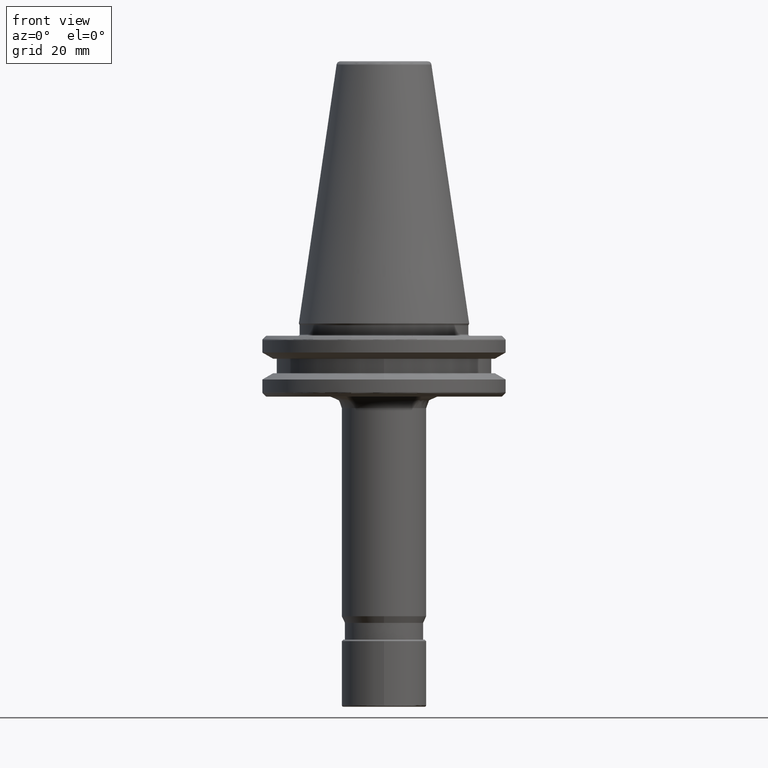
[diagram: clean part render]
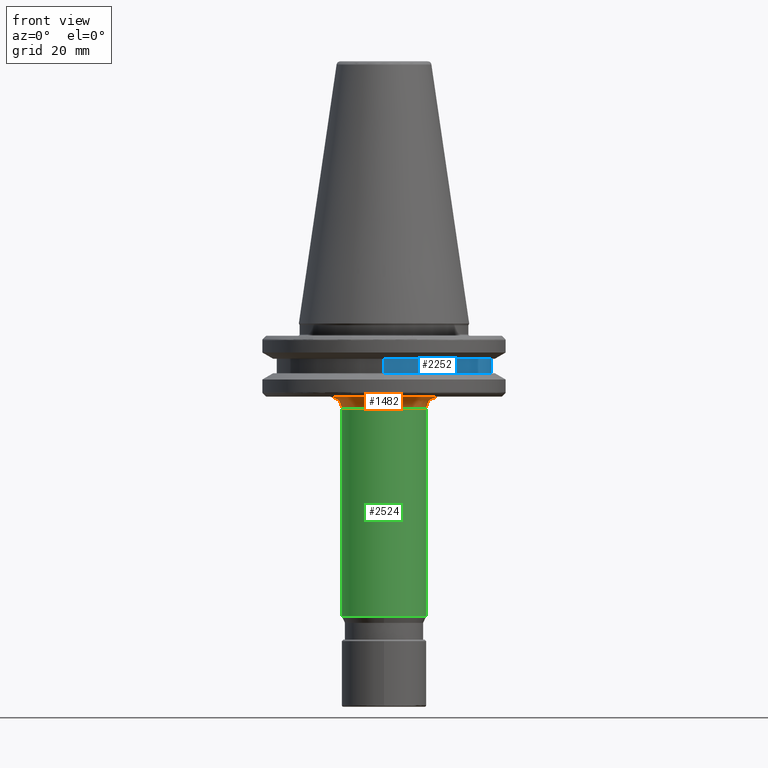
[diagram: same view with three faces highlighted in distinct colors, each labeled with its STEP entity id]
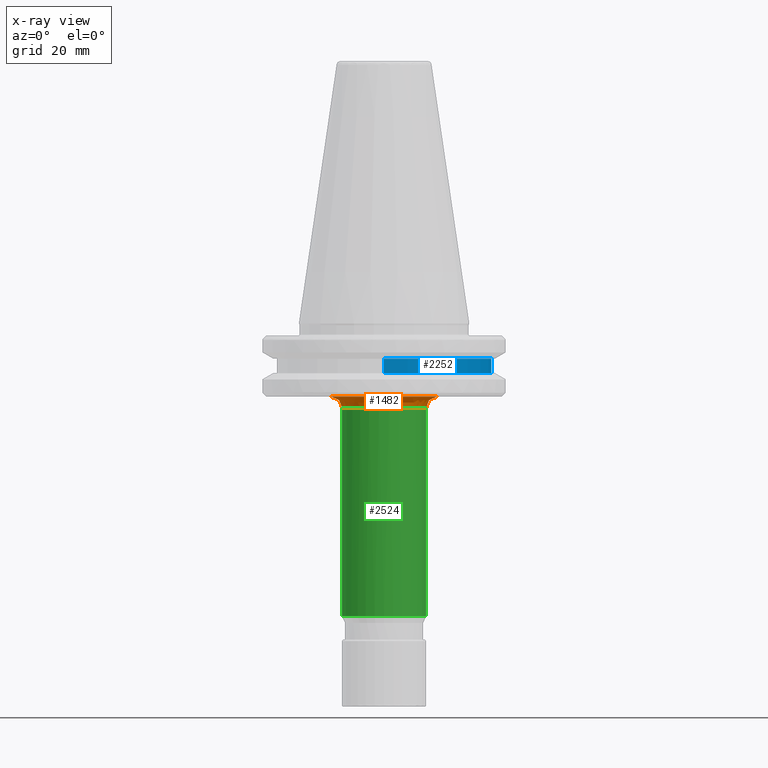
[diagram: x-ray of the same camera — body ghosted, the three highlighted faces saturated]
A machine part, front view with three faces highlighted in distinct colors.
The next image is the same camera in x-ray (body ghosted, the three faces saturated) — at least one of them is partly hidden behind the body in this view.
Their STEP definitions:

[orange] entity #1482 — the highlighted face is a freeform B-spline surface patch.
#13 = CARTESIAN_POINT ( 'NONE',  ( -10.36286045715019600, -9.413392332090424500, -19.10000000000000100 ) ) ;
#24 = CARTESIAN_POINT ( 'NONE',  ( -8.158444783580272000, -11.37748629482766700, -19.09999999999999800 ) ) ;
#35 = CARTESIAN_POINT ( 'NONE',  ( -6.707400549822712500, -12.28882747609662300, -19.10000000000000900 ) ) ;
#48 = CARTESIAN_POINT ( 'NONE',  ( -2.316102617542180800, -13.81012906421380900, -19.10000000000001600 ) ) ;
#55 = VERTEX_POINT ( 'NONE', #2914 ) ;
#63 = CARTESIAN_POINT ( 'NONE',  ( -11.00000000091064800, 0.0000000000000000000, -20.34264068676927900 ) ) ;
#66 = CARTESIAN_POINT ( 'NONE',  ( 9.156202084737252300, -10.59079677476361100, -19.09999999999999800 ) ) ;
#152 = CARTESIAN_POINT ( 'NONE',  ( -10.81033873200000200, -21.62067746400000700, -20.35983870400000500 ) ) ;
#217 = CARTESIAN_POINT ( 'NONE',  ( 7.775932328565342100, -11.64228723145097000, -19.09999999999999800 ) ) ;
#218 = DIRECTION ( 'NONE',  ( 0.0000000000000000000, 0.0000000000000000000, 1.000000000000000000 ) ) ;
#226 = CARTESIAN_POINT ( 'NONE',  ( 3.305715666981399200, -13.60431573757647800, -19.10000000000000100 ) ) ;
#233 = CARTESIAN_POINT ( 'NONE',  ( -14.29950025000000100, 0.0000000000000000000, -19.11498750400000500 ) ) ;
#238 = CARTESIAN_POINT ( 'NONE',  ( 13.86569435559510000, -1.934767207544784800, -19.10000000000000100 ) ) ;
#251 = CARTESIAN_POINT ( 'NONE',  ( 13.33921194611340500, -4.252410688305282300, -19.10000000000000100 ) ) ;
#260 = CARTESIAN_POINT ( 'NONE',  ( 11.83954440932815900, -7.494887792217078900, -19.10000000000000500 ) ) ;
#268 = CARTESIAN_POINT ( 'NONE',  ( -10.30320828978966200, -9.478652170441609600, -19.09999999999999800 ) ) ;
#282 = CARTESIAN_POINT ( 'NONE',  ( 10.68076680287143900, -9.056583707257118500, -19.09999999999999800 ) ) ;
#293 = CARTESIAN_POINT ( 'NONE',  ( -6.342564730461603500, -12.48397714306705300, -19.10000000000000500 ) ) ;
#301 = CARTESIAN_POINT ( 'NONE',  ( -1.164762836666204200, -13.96366059549640700, -19.10000000000000500 ) ) ;
#312 = CARTESIAN_POINT ( 'NONE',  ( 12.24264068605801500, 0.0000000000000000000, -19.10000000091065400 ) ) ;
#315 = CARTESIAN_POINT ( 'NONE',  ( -13.45226805944122400, -3.877701979167554700, -19.10000000000000500 ) ) ;
#320 = CARTESIAN_POINT ( 'NONE',  ( -12.73316352780018700, -5.821007116466709900, -19.09999999999999800 ) ) ;
#354 =( BOUNDED_CURVE ( )  B_SPLINE_CURVE ( 3, ( #2078, #828, #63, #2171 ),
 .UNSPECIFIED., .F., .F. ) 
 B_SPLINE_CURVE_WITH_KNOTS ( ( 4, 4 ),
 ( 0.06314145700000009500, 0.9368585429999997100 ),
 .UNSPECIFIED. ) 
 CURVE ( )  GEOMETRIC_REPRESENTATION_ITEM ( )  RATIONAL_B_SPLINE_CURVE ( ( 0.9565783021659930400, 0.7697947703959744400, 0.7697947703959744400, 0.9565783021659929300 ) ) 
 REPRESENTATION_ITEM ( '' )  );
#357 = CARTESIAN_POINT ( 'NONE',  ( -13.93934365640826900, -1.318066439066382500, -19.10000000000000500 ) ) ;
#457 = CARTESIAN_POINT ( 'NONE',  ( -11.01498750400000000, 0.0000000000000000000, -22.39950024999999900 ) ) ;
#481 = CARTESIAN_POINT ( 'NONE',  ( 6.528595523826218100, -12.38474622002781800, -19.10000000000000100 ) ) ;
#495 = CARTESIAN_POINT ( 'NONE',  ( 3.722201693382291700, -13.49913474462273500, -19.10000000000000500 ) ) ;
#510 = CARTESIAN_POINT ( 'NONE',  ( 13.87316931708519800, -1.880232539237060000, -19.10000000000000100 ) ) ;
#516 = CARTESIAN_POINT ( 'NONE',  ( 12.57883289791504900, -6.145982777992530000, -19.10000000000000500 ) ) ;
#524 = CARTESIAN_POINT ( 'NONE',  ( 10.81033873200000200, -21.62067746400000700, -20.35983870400000500 ) ) ;
#526 = CARTESIAN_POINT ( 'NONE',  ( 11.12778686417240900, -8.495480441625561600, -19.10000000000000500 ) ) ;
#530 = VERTEX_POINT ( 'NONE', #3109 ) ;
#542 = CARTESIAN_POINT ( 'NONE',  ( -9.850031153959207600, -9.954247996654597600, -19.09999999999999800 ) ) ;
#554 = CARTESIAN_POINT ( 'NONE',  ( 10.19651887728577200, -9.593326984117425100, -19.10000000000000100 ) ) ;
#561 = CARTESIAN_POINT ( 'NONE',  ( -7.002590216990145500, -12.12418689544444700, -19.09999999999999800 ) ) ;
#569 = CARTESIAN_POINT ( 'NONE',  ( 0.2914836909309104200, -14.00001144979583500, -19.10000000000000900 ) ) ;
#592 = CARTESIAN_POINT ( 'NONE',  ( 9.394133895978741900, -10.38331381235762600, -19.10000000000000500 ) ) ;
#622 = CARTESIAN_POINT ( 'NONE',  ( -13.52348002842328300, -3.623423034698007400, -19.09999999999999800 ) ) ;
#639 = CARTESIAN_POINT ( 'NONE',  ( 12.25983870399999800, -24.51967740900000300, -18.91033873200000300 ) ) ;
#687 = DIRECTION ( 'NONE',  ( 1.000000000000000000, 0.0000000000000000000, 0.0000000000000000000 ) ) ;
#722 = CARTESIAN_POINT ( 'NONE',  ( 11.01498750400000000, -22.02997500800000500, -22.39950024999999900 ) ) ;
#752 = CARTESIAN_POINT ( 'NONE',  ( 5.715431561765311300, -12.78554393726402700, -19.09999999999999800 ) ) ;
#758 = ORIENTED_EDGE ( 'NONE', *, *, #2404, .T. ) ;
#762 =( BOUNDED_CURVE ( )  B_SPLINE_CURVE ( 3, ( #869, #1059, #312, #2711 ),
 .UNSPECIFIED., .F., .F. ) 
 B_SPLINE_CURVE_WITH_KNOTS ( ( 4, 4 ),
 ( 0.06314145671542857600, 0.9368585429999990400 ),
 .UNSPECIFIED. ) 
 CURVE ( )  GEOMETRIC_REPRESENTATION_ITEM ( )  RATIONAL_B_SPLINE_CURVE ( ( 0.9565783023485002800, 0.7697947703959744400, 0.7697947703351385500, 0.9565783021659924900 ) ) 
 REPRESENTATION_ITEM ( '' )  );
#763 = CARTESIAN_POINT ( 'NONE',  ( -12.62213866011586200, -6.056621050367250600, -19.09999999999999400 ) ) ;
#773 = CARTESIAN_POINT ( 'NONE',  ( 13.83233450678003100, -2.163383893895633600, -19.09999999999999800 ) ) ;
#786 = CARTESIAN_POINT ( 'NONE',  ( 12.99569472290052000, -5.233503724584436700, -19.09999999999999800 ) ) ;
#804 = CARTESIAN_POINT ( 'NONE',  ( -11.26633694897633800, -8.310861380018137000, -19.10000000000000500 ) ) ;
#813 = CARTESIAN_POINT ( 'NONE',  ( -2.883757012376557700, -13.70285579274853500, -19.10000000000000900 ) ) ;
#819 = CARTESIAN_POINT ( 'NONE',  ( -9.369729972260589800, -10.40264237960631500, -19.10000000000000100 ) ) ;
#828 = CARTESIAN_POINT ( 'NONE',  ( -12.24264068676927600, 0.0000000000000000000, -19.10000000091065100 ) ) ;
#832 = CARTESIAN_POINT ( 'NONE',  ( 10.26167824832935300, -9.523592966065782800, -19.09999999999999800 ) ) ;
#846 = CARTESIAN_POINT ( 'NONE',  ( 2.458266889080651400, -13.78782115965945800, -19.09999999999999800 ) ) ;
#849 = ORIENTED_EDGE ( 'NONE', *, *, #1081, .F. ) ;
#860 = CARTESIAN_POINT ( 'NONE',  ( -5.138062878864950300, -13.02326011005788300, -19.10000000000000500 ) ) ;
#869 = CARTESIAN_POINT ( 'NONE',  ( 10.99999999996942700, -4.938649563580315600E-010, -22.10000000000000100 ) ) ;
#909 = CARTESIAN_POINT ( 'NONE',  ( 12.25983870400000000, 0.0000000000000000000, -18.91033873200000300 ) ) ;
#912 = CARTESIAN_POINT ( 'NONE',  ( -13.46140253849050500, -3.845964829889311000, -19.10000000000000100 ) ) ;
#1012 = CARTESIAN_POINT ( 'NONE',  ( 8.501118625466514100, -11.12881869393736700, -19.10000000000000100 ) ) ;
#1017 = CARTESIAN_POINT ( 'NONE',  ( 6.341189093826571400, -12.48175428091341600, -19.10000000000000100 ) ) ;
#1026 = CARTESIAN_POINT ( 'NONE',  ( -12.59513548492049000, -6.112503177034723100, -19.10000000000000100 ) ) ;
#1042 = CARTESIAN_POINT ( 'NONE',  ( 13.43691934145425100, -3.930560815935495900, -19.10000000000001200 ) ) ;
#1053 = CARTESIAN_POINT ( 'NONE',  ( 12.55982638876216500, -6.184733328577493700, -19.10000000000000500 ) ) ;
#1059 = CARTESIAN_POINT ( 'NONE',  ( 11.00000000010118800, 0.0000000000000000000, -20.34264068757875100 ) ) ;
#1060 = CARTESIAN_POINT ( 'NONE',  ( -11.21793503437584300, -8.376084768015770600, -19.10000000000000100 ) ) ;
#1073 = CARTESIAN_POINT ( 'NONE',  ( -9.252630499693856000, -10.50665307429635900, -19.10000000000001200 ) ) ;
#1081 = EDGE_CURVE ( 'NONE', #1704, #2111, #3181, .T. ) ;
#1090 = CARTESIAN_POINT ( 'NONE',  ( 9.980118876294730200, -9.819612591153219900, -19.10000000000000900 ) ) ;
#1094 = CARTESIAN_POINT ( 'NONE',  ( 14.00000000217723800, 0.0000000000000000000, -19.09999999992663100 ) ) ;
#1100 = CARTESIAN_POINT ( 'NONE',  ( 1.163435989349808100, -13.95235037433007000, -19.10000000000000500 ) ) ;
#1109 = CARTESIAN_POINT ( 'NONE',  ( -8.078551725906972800, -11.43407227308017200, -19.09999999999999800 ) ) ;
#1114 = CARTESIAN_POINT ( 'NONE',  ( -13.32885564223925300, -4.301118215267646100, -19.10000000000000100 ) ) ;
#1146 = CARTESIAN_POINT ( 'NONE',  ( 14.29950025000000100, -28.59900049999999500, -19.11498750400000500 ) ) ;
#1165 = CARTESIAN_POINT ( 'NONE',  ( -13.87756610177013700, -1.847503412153400200, -19.10000000000000500 ) ) ;
#1194 = CARTESIAN_POINT ( 'NONE',  ( 13.99999999858502500, -0.6223928478897156100, -19.10000000000000100 ) ) ;
#1210 = CARTESIAN_POINT ( 'NONE',  ( -11.01498750400000000, -22.02997500800000500, -22.39950024999999900 ) ) ;
#1255 = CARTESIAN_POINT ( 'NONE',  ( -4.403951716143797800, -13.29465382039787100, -19.09999999999999400 ) ) ;
#1278 = CARTESIAN_POINT ( 'NONE',  ( 7.859947740938611800, -11.58543522740202300, -19.10000000000000500 ) ) ;
#1292 = CARTESIAN_POINT ( 'NONE',  ( 5.006817212484128800, -13.07427063635123700, -19.10000000000000500 ) ) ;
#1307 = CARTESIAN_POINT ( 'NONE',  ( -12.38960221635758600, -6.534185748997289900, -19.09999999999999800 ) ) ;
#1314 = CARTESIAN_POINT ( 'NONE',  ( 13.66703007546562500, -3.070895171057114800, -19.09999999999999400 ) ) ;
#1324 = CARTESIAN_POINT ( 'NONE',  ( 12.22759838156411000, -6.824536630563670800, -19.09999999999999800 ) ) ;
#1340 = CARTESIAN_POINT ( 'NONE',  ( -10.83415540340948300, -8.872518153654610300, -19.10000000000000100 ) ) ;
#1348 = CARTESIAN_POINT ( 'NONE',  ( -9.008916577824292600, -10.71950399578601100, -19.10000000000000500 ) ) ;
#1357 = CARTESIAN_POINT ( 'NONE',  ( -5.968744660624365000, -12.66926854731183900, -19.10000000000000100 ) ) ;
#1371 = CARTESIAN_POINT ( 'NONE',  ( -0.5829673818618201800, -13.99997709636030100, -19.10000000000000100 ) ) ;
#1384 = CARTESIAN_POINT ( 'NONE',  ( -7.999311379384114900, -11.48965298283111900, -19.10000000000000100 ) ) ;
#1390 = CARTESIAN_POINT ( 'NONE',  ( -12.87517172004442800, -5.504562226840735500, -19.10000000000000900 ) ) ;
#1418 = CARTESIAN_POINT ( 'NONE',  ( -13.99999999858502300, -0.3110257572653066200, -19.10000000000000500 ) ) ;
#1430 = CARTESIAN_POINT ( 'NONE',  ( -13.90998340567376300, -1.588377989081420000, -19.10000000000000100 ) ) ;
#1440 = CARTESIAN_POINT ( 'NONE',  ( -13.73983804394698500, -2.726711564042388700, -19.10000000000000500 ) ) ;
#1482 = ADVANCED_FACE ( 'NONE', ( #1891 ), #1580, .F. ) ;
#1485 = CARTESIAN_POINT ( 'NONE',  ( -12.25983870399999800, -24.51967740900000300, -18.91033873200000300 ) ) ;
#1553 = CARTESIAN_POINT ( 'NONE',  ( 7.944719910675399200, -11.52746530698369100, -19.10000000000000500 ) ) ;
#1562 = CARTESIAN_POINT ( 'NONE',  ( 4.132430612426022200, -13.38154095647169400, -19.09999999999999400 ) ) ;
#1569 = CARTESIAN_POINT ( 'NONE',  ( -11.65105328396713700, -7.767972728221109500, -19.09999999999999800 ) ) ;
#1573 = CARTESIAN_POINT ( 'NONE',  ( 14.00000000217723800, 0.0000000000000000000, -19.09999999992663100 ) ) ;
#1580 =( BOUNDED_SURFACE ( )  B_SPLINE_SURFACE ( 3, 3, ( 
 ( #2000, #1146, #2476, #233 ),
 ( #909, #639, #1485, #2384 ),
 ( #2348, #524, #152, #1613 ),
 ( #2746, #722, #1210, #457 ) ),
 .UNSPECIFIED., .F., .F., .T. ) 
 B_SPLINE_SURFACE_WITH_KNOTS ( ( 4, 4 ),
 ( 4, 4 ),
 ( 0.0000000000000000000, 1.000000000000000000 ),
 ( 0.0000000000000000000, 1.000000000000000000 ),
 .UNSPECIFIED. ) 
 GEOMETRIC_REPRESENTATION_ITEM ( )  RATIONAL_B_SPLINE_SURFACE ( (
 ( 1.000000000000000000, 0.3333333333333330400, 0.3333333333333330400, 1.000000000000000000),
 ( 0.7553208711179720800, 0.2517736237059909900, 0.2517736237059909900, 0.7553208711179720800),
 ( 0.7553208711179720800, 0.2517736237059909900, 0.2517736237059909900, 0.7553208711179720800),
 ( 1.000000000000000000, 0.3333333333333330400, 0.3333333333333330400, 1.000000000000000000) ) ) 
 REPRESENTATION_ITEM ( '' )  SURFACE ( )  );
#1583 = CARTESIAN_POINT ( 'NONE',  ( 13.42601507327002300, -3.967649351652723600, -19.10000000000000900 ) ) ;
#1592 = CARTESIAN_POINT ( 'NONE',  ( 12.49804396901724600, -6.309072191030640700, -19.09999999999999800 ) ) ;
#1601 = CARTESIAN_POINT ( 'NONE',  ( -10.42313970972873500, -9.346890626123377300, -19.10000000000000500 ) ) ;
#1606 = CARTESIAN_POINT ( 'NONE',  ( -8.343369716037514600, -11.24358200145268000, -19.10000000000000100 ) ) ;
#1613 = CARTESIAN_POINT ( 'NONE',  ( -10.81033873200000000, 0.0000000000000000000, -20.35983870400000500 ) ) ;
#1621 = CARTESIAN_POINT ( 'NONE',  ( -5.330432813008728800, -12.94570773050853100, -19.10000000000000100 ) ) ;
#1622 = CARTESIAN_POINT ( 'NONE',  ( 13.95870206348595700, -1.241861874378699500, -19.10000000000000500 ) ) ;
#1632 = CARTESIAN_POINT ( 'NONE',  ( 0.7279952917918973700, -13.98640136111323400, -19.09999999999999400 ) ) ;
#1644 = CARTESIAN_POINT ( 'NONE',  ( 9.106717894118128600, -10.63337622371102100, -19.10000000000000100 ) ) ;
#1673 = CARTESIAN_POINT ( 'NONE',  ( -14.00000000217724000, 0.0000000000000000000, -19.09999999992663100 ) ) ;
#1677 = CARTESIAN_POINT ( 'NONE',  ( -13.88499896153912900, -1.790926287460798700, -19.09999999999999800 ) ) ;
#1704 = VERTEX_POINT ( 'NONE', #3168 ) ;
#1731 = ORIENTED_EDGE ( 'NONE', *, *, #2762, .T. ) ;
#1758 = CARTESIAN_POINT ( 'NONE',  ( -4.806239048014970400, -13.15224257234795000, -19.10000000000000100 ) ) ;
#1801 = CARTESIAN_POINT ( 'NONE',  ( 7.578582238966011400, -11.77273462968618600, -19.09999999999999800 ) ) ;
#1810 = CARTESIAN_POINT ( 'NONE',  ( 4.805097277074938900, -13.14975826910121800, -19.10000000000000500 ) ) ;
#1822 = CARTESIAN_POINT ( 'NONE',  ( -11.31572006806703900, -8.243783611839973000, -19.10000000000000100 ) ) ;
#1824 = EDGE_CURVE ( 'NONE', #1704, #55, #354, .T. ) ;
#1835 = CARTESIAN_POINT ( 'NONE',  ( 13.23156504931381900, -4.582131538693362300, -19.10000000000000100 ) ) ;
#1842 = CARTESIAN_POINT ( 'NONE',  ( 11.46657754321799100, -8.044590776570466100, -19.10000000000000500 ) ) ;
#1854 = CARTESIAN_POINT ( 'NONE',  ( -10.32252545782072100, -9.457606251297034900, -19.10000000000000500 ) ) ;
#1870 = CARTESIAN_POINT ( 'NONE',  ( 10.44427892204517300, -9.326010361592295800, -19.10000000000000500 ) ) ;
#1879 = CARTESIAN_POINT ( 'NONE',  ( -6.649652934199322900, -12.32018218333323000, -19.10000000000000900 ) ) ;
#1888 = CARTESIAN_POINT ( 'NONE',  ( 1.453491809209958700, -13.92510729467450400, -19.10000000000001200 ) ) ;
#1891 = FACE_OUTER_BOUND ( 'NONE', #2149, .T. ) ;
#1911 = CARTESIAN_POINT ( 'NONE',  ( 8.186012949338584500, -11.36034870852447100, -19.10000000000001200 ) ) ;
#1941 = CARTESIAN_POINT ( 'NONE',  ( -13.98451327292287200, -0.7765959601476483100, -19.10000000000001200 ) ) ;
#2000 = CARTESIAN_POINT ( 'NONE',  ( 14.29950025000000100, 0.0000000000000000000, -19.11498750400000500 ) ) ;
#2060 = CARTESIAN_POINT ( 'NONE',  ( 6.465029415704044000, -12.41805849852786100, -19.10000000000000900 ) ) ;
#2072 = CARTESIAN_POINT ( 'NONE',  ( 3.377141883911362700, -13.58675477374800200, -19.10000000000000500 ) ) ;
#2078 = CARTESIAN_POINT ( 'NONE',  ( -14.00000000217724000, 0.0000000000000000000, -19.09999999992663100 ) ) ;
#2079 = CARTESIAN_POINT ( 'NONE',  ( 13.87019450631585100, -1.902049718687882900, -19.10000000000000500 ) ) ;
#2088 = CARTESIAN_POINT ( 'NONE',  ( 13.39046332791143500, -4.086541573750611000, -19.10000000000000500 ) ) ;
#2103 = CARTESIAN_POINT ( 'NONE',  ( 11.07324531167494400, -8.566763568202510700, -19.10000000000000500 ) ) ;
#2111 = VERTEX_POINT ( 'NONE', #1094 ) ;
#2114 = CARTESIAN_POINT ( 'NONE',  ( -10.11203859036272800, -9.685536726585683100, -19.10000000000001200 ) ) ;
#2120 = CARTESIAN_POINT ( 'NONE',  ( 10.94445488327781600, -8.731782042551010600, -19.10000000000000900 ) ) ;
#2136 = CARTESIAN_POINT ( 'NONE',  ( -7.409682543835443400, -11.88381572842554900, -19.10000000000000100 ) ) ;
#2149 = EDGE_LOOP ( 'NONE', ( #758, #849, #2825, #1731 ) ) ;
#2151 = CARTESIAN_POINT ( 'NONE',  ( -3.586314924045678400, -13.53362853226985300, -19.10000000000000100 ) ) ;
#2152 = CARTESIAN_POINT ( 'NONE',  ( 13.87481563281596700, -1.868040598296404600, -19.10000000000000500 ) ) ;
#2165 = CARTESIAN_POINT ( 'NONE',  ( 9.181897645517608500, -10.56852412847597300, -19.10000000000000500 ) ) ;
#2171 = CARTESIAN_POINT ( 'NONE',  ( -10.99999999996943100, -3.384206570502963900E-009, -22.09999999965454300 ) ) ;
#2199 = CARTESIAN_POINT ( 'NONE',  ( -13.88121802265676800, -1.819848518362723800, -19.10000000000000100 ) ) ;
#2204 = CARTESIAN_POINT ( 'NONE',  ( -13.60127971256808100, -3.325682640459983700, -19.10000000000000900 ) ) ;
#2336 = CARTESIAN_POINT ( 'NONE',  ( 6.826794371954015600, -12.22572099628869100, -19.10000000000000900 ) ) ;
#2342 = CARTESIAN_POINT ( 'NONE',  ( -12.65957730396312900, -5.978246856526021200, -19.09999999999999800 ) ) ;
#2348 = CARTESIAN_POINT ( 'NONE',  ( 10.81033873200000000, 0.0000000000000000000, -20.35983870400000500 ) ) ;
#2352 = CARTESIAN_POINT ( 'NONE',  ( 13.78289792497374400, -2.467124180636911700, -19.09999999999999800 ) ) ;
#2365 = CARTESIAN_POINT ( 'NONE',  ( 12.75824610115062500, -5.777989286973813400, -19.10000000000000100 ) ) ;
#2375 = CARTESIAN_POINT ( 'NONE',  ( 11.16400248908471800, -8.447833707622104200, -19.10000000000000900 ) ) ;
#2384 = CARTESIAN_POINT ( 'NONE',  ( -12.25983870400000000, 0.0000000000000000000, -18.91033873200000300 ) ) ;
#2387 = CARTESIAN_POINT ( 'NONE',  ( -9.531905429778454700, -10.25525857001945500, -19.10000000000000100 ) ) ;
#2402 = CARTESIAN_POINT ( 'NONE',  ( 10.23935132379819800, -9.547597455740719500, -19.10000000000000500 ) ) ;
#2404 = EDGE_CURVE ( 'NONE', #530, #2111, #762, .T. ) ;
#2416 = CARTESIAN_POINT ( 'NONE',  ( -6.825787670833677500, -12.22346911042932200, -19.09999999999999800 ) ) ;
#2424 = CARTESIAN_POINT ( 'NONE',  ( -7.749281199668874200, -11.66284730174506400, -19.10000000000000100 ) ) ;
#2449 = CARTESIAN_POINT ( 'NONE',  ( 9.670185699738393500, -10.12905203563918700, -19.09999999999999800 ) ) ;
#2476 = CARTESIAN_POINT ( 'NONE',  ( -14.29950025000000100, -28.59900049999999500, -19.11498750400000500 ) ) ;
#2479 = CARTESIAN_POINT ( 'NONE',  ( -13.48245005673706300, -3.771856945824326100, -19.09999999999999800 ) ) ;
#2511 = AXIS2_PLACEMENT_3D ( 'NONE', #2548, #218, #687 ) ;
#2548 = CARTESIAN_POINT ( 'NONE',  ( 0.0000000000000000000, 0.0000000000000000000, -22.10000000000000100 ) ) ;
#2578 = CARTESIAN_POINT ( 'NONE',  ( -2.032404573620525800, -13.85474557572991800, -19.10000000000000500 ) ) ;
#2603 = CARTESIAN_POINT ( 'NONE',  ( 6.154794166880625600, -12.57587641362945300, -19.10000000000000100 ) ) ;
#2619 = CARTESIAN_POINT ( 'NONE',  ( -12.60595519876803300, -6.090157345687402700, -19.10000000000000100 ) ) ;
#2630 = CARTESIAN_POINT ( 'NONE',  ( 13.85492846194623700, -2.011050052642201300, -19.10000000000000100 ) ) ;
#2637 = CARTESIAN_POINT ( 'NONE',  ( 12.54140199261577700, -6.222103028750720600, -19.10000000000000500 ) ) ;
#2651 = CARTESIAN_POINT ( 'NONE',  ( -11.23327407206233300, -8.355494633546836500, -19.10000000000000500 ) ) ;
#2666 = CARTESIAN_POINT ( 'NONE',  ( -9.299559220018483800, -10.46513798148021800, -19.10000000000000100 ) ) ;
#2674 = CARTESIAN_POINT ( 'NONE',  ( 3.164982404180360500, -13.63774737687257900, -19.10000000000000500 ) ) ;
#2684 = CARTESIAN_POINT ( 'NONE',  ( 2.953587426001917000, -13.68624150545927500, -19.09999999999999800 ) ) ;
#2700 = CARTESIAN_POINT ( 'NONE',  ( -8.025147572971079100, -11.47161813057048700, -19.10000000000000100 ) ) ;
#2705 = CARTESIAN_POINT ( 'NONE',  ( -13.44615304805582700, -3.898854884805516500, -19.10000000000000100 ) ) ;
#2711 = CARTESIAN_POINT ( 'NONE',  ( 14.00000000217723800, 0.0000000000000000000, -19.09999999992663100 ) ) ;
#2726 = CIRCLE ( 'NONE', #2511, 11.00000000000000000 ) ;
#2746 = CARTESIAN_POINT ( 'NONE',  ( 11.01498750400000000, 0.0000000000000000000, -22.39950024999999900 ) ) ;
#2750 = CARTESIAN_POINT ( 'NONE',  ( -13.87867723172781500, -1.839128744650180500, -19.10000000000000500 ) ) ;
#2762 = EDGE_CURVE ( 'NONE', #55, #530, #2726, .T. ) ;
#2825 = ORIENTED_EDGE ( 'NONE', *, *, #1824, .T. ) ;
#2856 = CARTESIAN_POINT ( 'NONE',  ( 8.857159757292198100, -10.84346154779650500, -19.09999999999999800 ) ) ;
#2871 = CARTESIAN_POINT ( 'NONE',  ( 4.938637873155030900, -13.10018554538359800, -19.10000000000000100 ) ) ;
#2881 = CARTESIAN_POINT ( 'NONE',  ( -12.59035301931482600, -6.122351638554295800, -19.10000000000000500 ) ) ;
#2891 = CARTESIAN_POINT ( 'NONE',  ( 13.53858102863775900, -3.582053877596091500, -19.10000000000000500 ) ) ;
#2905 = CARTESIAN_POINT ( 'NONE',  ( 12.57207429420035500, -6.159798594672395200, -19.10000000000000900 ) ) ;
#2914 = CARTESIAN_POINT ( 'NONE',  ( -10.99999999996943100, -3.384206570502963900E-009, -22.09999999965454300 ) ) ;
#2915 = CARTESIAN_POINT ( 'NONE',  ( -11.05651971480546400, -8.591321848587364600, -19.10000000000000100 ) ) ;
#2926 = CARTESIAN_POINT ( 'NONE',  ( -9.230049810286919500, -10.52650035554742300, -19.10000000000000900 ) ) ;
#2938 = CARTESIAN_POINT ( 'NONE',  ( 10.13205364928209200, -9.661692692664953300, -19.10000000000000500 ) ) ;
#2953 = CARTESIAN_POINT ( 'NONE',  ( 1.599703281383743700, -13.90905113827869900, -19.10000000000000500 ) ) ;
#2963 = CARTESIAN_POINT ( 'NONE',  ( -3.995516281995860700, -13.41851350840055600, -19.10000000000000500 ) ) ;
#2966 = CARTESIAN_POINT ( 'NONE',  ( -13.13853108281346000, -4.863810809559330700, -19.10000000000000900 ) ) ;
#3012 = CARTESIAN_POINT ( 'NONE',  ( -13.82938912185350200, -2.207324433498945900, -19.10000000000000100 ) ) ;
#3054 = CARTESIAN_POINT ( 'NONE',  ( -3.165831689325285100, -13.64043523922912700, -19.10000000000000900 ) ) ;
#3065 = CARTESIAN_POINT ( 'NONE',  ( -3.721859747613502900, -13.49696406483629100, -19.10000000000000500 ) ) ;
#3109 = CARTESIAN_POINT ( 'NONE',  ( 10.99999999996942700, -4.938649563580315600E-010, -22.10000000000000100 ) ) ;
#3129 = CARTESIAN_POINT ( 'NONE',  ( 7.915832860864129300, -11.54732367442854000, -19.10000000000000900 ) ) ;
#3136 = CARTESIAN_POINT ( 'NONE',  ( 5.331221713538242900, -12.94820046717454100, -19.10000000000000900 ) ) ;
#3147 = CARTESIAN_POINT ( 'NONE',  ( -12.07056792454100600, -7.116847533071544200, -19.09999999999999800 ) ) ;
#3160 = CARTESIAN_POINT ( 'NONE',  ( 13.41544600216001500, -4.003354844133114400, -19.10000000000000500 ) ) ;
#3167 = CARTESIAN_POINT ( 'NONE',  ( 12.40985685812561100, -6.482103296426697800, -19.10000000000000500 ) ) ;
#3168 = CARTESIAN_POINT ( 'NONE',  ( -14.00000000217724000, 0.0000000000000000000, -19.09999999992663100 ) ) ;
#3178 = CARTESIAN_POINT ( 'NONE',  ( -10.56222857416876700, -9.190454188767018800, -19.09999999999999400 ) ) ;
#3181 = B_SPLINE_CURVE_WITH_KNOTS ( 'NONE', 3,
 ( #1673, #1418, #1941, #357, #1430, #3257, #1677, #2199, #2750, #1165, #3012, #1440, #2204, #622, #2479, #912, #315, #2705, #3222, #1114, #2966, #1390, #320, #2342, #763, #2619, #1026, #2881, #1307, #3147, #1569, #3398, #1822, #804, #2651, #1060, #2915, #1340, #3178, #1601, #13, #1854, #268, #2114, #542, #2387, #819, #2666, #1073, #2926, #1348, #3191, #1606, #24, #1109, #2700, #1384, #2424, #2136, #561, #2416, #35, #1879, #293, #1357, #3200, #1621, #3218, #860, #1758, #1255, #2963, #3065, #2151, #3054, #813, #48, #2578, #301, #1371, #569, #1632, #1100, #1888, #2953, #3206, #846, #2684, #2674, #226, #2072, #495, #1562, #3387, #1810, #2871, #1292, #3136, #752, #2603, #1017, #2060, #481, #2336, #3373, #1801, #217, #1278, #3129, #1553, #1911, #1012, #2856, #3228, #1644, #66, #2165, #592, #2449, #1090, #2938, #554, #2402, #832, #1870, #282, #2120, #2103, #526, #2375, #3419, #1842, #260, #1324, #3167, #1592, #2637, #1053, #2905, #516, #2365, #786, #1835, #251, #2088, #3160, #1583, #3406, #1042, #2891, #1314, #2352, #773, #2630, #238, #2079, #510, #2152, #1622, #1194, #1573 ),
 .UNSPECIFIED., .F., .F.,
 ( 4, 1, 1, 1, 1, 1, 2, 2, 1, 1, 1, 1, 1, 2, 2, 1, 1, 1, 1, 1, 2, 2, 1, 1, 1, 1, 2, 2, 1, 1, 1, 2, 2, 1, 1, 1, 2, 2, 1, 1, 1, 2, 2, 1, 1, 2, 2, 1, 1, 2, 2, 1, 2, 2, 2, 2, 2, 1, 2, 2, 1, 1, 2, 2, 1, 1, 2, 2, 1, 1, 2, 2, 1, 1, 1, 2, 2, 1, 1, 1, 2, 2, 1, 1, 1, 2, 2, 1, 1, 1, 2, 2, 1, 1, 1, 1, 1, 2, 2, 1, 1, 1, 1, 1, 2, 2, 1, 1, 1, 1, 1, 2, 2, 4 ),
 ( 0.0000000000000000000, 0.03124999999999803600, 0.04687499999999704400, 0.05468749999999654400, 0.05859374999999628800, 0.06054687499999617700, 0.06152343749999612800, 0.06249999999999608600, 0.09374999999999446300, 0.1093749999999936600, 0.1171874999999932100, 0.1210937499999930300, 0.1230468749999929100, 0.1240234374999928300, 0.1249999999999927600, 0.1562499999999906500, 0.1718749999999896200, 0.1796874999999890900, 0.1835937499999887900, 0.1855468749999886200, 0.1865234374999885600, 0.1874999999999884800, 0.2187499999999882000, 0.2343749999999880100, 0.2421874999999879500, 0.2460937499999878700, 0.2480468749999879000, 0.2499999999999879500, 0.2656249999999890600, 0.2734374999999896200, 0.2773437499999899000, 0.2792968749999900600, 0.2812499999999902300, 0.2968749999999913400, 0.3046874999999918400, 0.3085937499999920600, 0.3105468749999920600, 0.3124999999999921200, 0.3281249999999923900, 0.3359374999999925100, 0.3398437499999925600, 0.3417968749999925600, 0.3437499999999925600, 0.3593749999999923900, 0.3671874999999922800, 0.3710937499999922800, 0.3749999999999922300, 0.3906249999999922800, 0.3984374999999922800, 0.4023437499999922800, 0.4062499999999922300, 0.4218749999999922300, 0.4296874999999922300, 0.4374999999999921700, 0.4531249999999921200, 0.4687499999999920600, 0.4999999999999920100, 0.5156249999999920100, 0.5234374999999920100, 0.5312499999999919000, 0.5468749999999917800, 0.5546874999999917800, 0.5585937499999917800, 0.5624999999999917800, 0.5781249999999917800, 0.5859374999999917800, 0.5898437499999917800, 0.5937499999999917800, 0.6093749999999919000, 0.6171874999999920100, 0.6210937499999919000, 0.6249999999999919000, 0.6406249999999919000, 0.6484374999999920100, 0.6523437499999920100, 0.6542968749999920100, 0.6562499999999920100, 0.6718749999999921200, 0.6796874999999921200, 0.6835937499999922300, 0.6855468749999923400, 0.6874999999999924500, 0.7031249999999924500, 0.7109374999999924500, 0.7148437499999923400, 0.7167968749999924500, 0.7187499999999925600, 0.7343749999999928900, 0.7421874999999932300, 0.7460937499999934500, 0.7480468749999935600, 0.7499999999999935600, 0.7812499999999956700, 0.7968749999999965600, 0.8046874999999970000, 0.8085937499999971100, 0.8105468749999973400, 0.8115234374999974500, 0.8124999999999974500, 0.8437499999999983300, 0.8593749999999987800, 0.8671874999999988900, 0.8710937499999990000, 0.8730468749999991100, 0.8740234374999991100, 0.8749999999999992200, 0.9062499999999993300, 0.9218749999999994400, 0.9296874999999995600, 0.9335937499999996700, 0.9355468749999995600, 0.9365234374999996700, 0.9374999999999996700, 1.000000000000000000 ),
 .UNSPECIFIED. ) ;
#3191 = CARTESIAN_POINT ( 'NONE',  ( -8.707250772496749400, -10.96829203822601800, -19.10000000000000100 ) ) ;
#3200 = CARTESIAN_POINT ( 'NONE',  ( -5.523321351448320400, -12.86573239425141900, -19.10000000000000100 ) ) ;
#3206 = CARTESIAN_POINT ( 'NONE',  ( 2.030165421139752600, -13.85504947039885300, -19.10000000000000900 ) ) ;
#3218 = CARTESIAN_POINT ( 'NONE',  ( -5.201397601936335500, -12.99808607572695100, -19.10000000000000500 ) ) ;
#3222 = CARTESIAN_POINT ( 'NONE',  ( -13.44347325977919100, -3.908090055383259800, -19.10000000000000500 ) ) ;
#3228 = CARTESIAN_POINT ( 'NONE',  ( 9.032284783957489800, -10.69697327577876700, -19.10000000000000900 ) ) ;
#3257 = CARTESIAN_POINT ( 'NONE',  ( -13.89360941968722700, -1.723427841727858100, -19.10000000000000500 ) ) ;
#3373 = CARTESIAN_POINT ( 'NONE',  ( 7.178625550187303100, -12.02480031464069100, -19.09999999999999800 ) ) ;
#3387 = CARTESIAN_POINT ( 'NONE',  ( 4.604306026414626300, -13.22256113552754700, -19.09999999999999800 ) ) ;
#3398 = CARTESIAN_POINT ( 'NONE',  ( -11.42946897198322800, -8.086373604228276300, -19.09999999999999400 ) ) ;
#3406 = CARTESIAN_POINT ( 'NONE',  ( 13.43303050083620000, -3.943833681792457300, -19.10000000000000100 ) ) ;
#3419 = CARTESIAN_POINT ( 'NONE',  ( 11.18333890234614400, -8.422213075604137300, -19.09999999999999800 ) ) ;

[blue] entity #2252 — the highlighted cylindrical surface (partial cylindrical patch) has radius 28 mm, axis along (0, -0, 1).
#45 = CYLINDRICAL_SURFACE ( 'NONE', #2468, 28.00000000000000000 ) ;
#86 = LINE ( 'NONE', #778, #2099 ) ;
#321 = FACE_OUTER_BOUND ( 'NONE', #2087, .T. ) ;
#394 = EDGE_CURVE ( 'NONE', #2230, #1198, #86, .T. ) ;
#520 = CARTESIAN_POINT ( 'NONE',  ( 0.0000000000000000000, 1.115178739458694700E-025, -13.00000000360000000 ) ) ;
#582 = EDGE_CURVE ( 'NONE', #2781, #2230, #2271, .T. ) ;
#634 = DIRECTION ( 'NONE',  ( 0.0000000000000000000, -1.000000000000000000, -6.195440985631454100E-017 ) ) ;
#660 = VERTEX_POINT ( 'NONE', #2254 ) ;
#778 = CARTESIAN_POINT ( 'NONE',  ( 0.0000000000000000000, -28.00000000000000000, -13.00000000000000400 ) ) ;
#780 = DIRECTION ( 'NONE',  ( 0.0000000000000000000, -1.000000000000000000, -6.195440985631454100E-017 ) ) ;
#798 = CARTESIAN_POINT ( 'NONE',  ( 0.0000000000000000000, -28.00000000000000000, -13.00000000360000200 ) ) ;
#825 = CARTESIAN_POINT ( 'NONE',  ( 0.0000000000000000000, -1.177133786201263800E-016, -9.200000003449996900 ) ) ;
#1107 = EDGE_CURVE ( 'NONE', #1198, #660, #2435, .T. ) ;
#1198 = VERTEX_POINT ( 'NONE', #2605 ) ;
#1203 = AXIS2_PLACEMENT_3D ( 'NONE', #825, #2941, #780 ) ;
#1373 = ORIENTED_EDGE ( 'NONE', *, *, #1107, .F. ) ;
#1392 = DIRECTION ( 'NONE',  ( -0.0000000000000000000, 3.097720492815727700E-017, -1.000000000000000000 ) ) ;
#1408 = ORIENTED_EDGE ( 'NONE', *, *, #2652, .T. ) ;
#1435 = DIRECTION ( 'NONE',  ( 0.0000000000000000000, -1.000000000000000000, -6.195440985631454100E-017 ) ) ;
#1579 = DIRECTION ( 'NONE',  ( 0.0000000000000000000, -3.097720492815727700E-017, 1.000000000000000000 ) ) ;
#1679 = DIRECTION ( 'NONE',  ( 0.0000000000000000000, -3.097720492815727700E-017, 1.000000000000000000 ) ) ;
#1753 = CARTESIAN_POINT ( 'NONE',  ( 3.429011037612589300E-015, 28.00000000000000000, -13.00000000360000000 ) ) ;
#2087 = EDGE_LOOP ( 'NONE', ( #2360, #1408, #1373, #2623 ) ) ;
#2099 = VECTOR ( 'NONE', #2862, 1000.000000000000000 ) ;
#2230 = VERTEX_POINT ( 'NONE', #798 ) ;
#2252 = ADVANCED_FACE ( 'NONE', ( #321 ), #45, .T. ) ;
#2254 = CARTESIAN_POINT ( 'NONE',  ( 3.429011037612589300E-015, 28.00000000000000000, -9.200000003449996900 ) ) ;
#2271 = CIRCLE ( 'NONE', #2575, 28.00000000000000000 ) ;
#2360 = ORIENTED_EDGE ( 'NONE', *, *, #582, .F. ) ;
#2435 = CIRCLE ( 'NONE', #1203, 28.00000000000000000 ) ;
#2468 = AXIS2_PLACEMENT_3D ( 'NONE', #3263, #1679, #1435 ) ;
#2575 = AXIS2_PLACEMENT_3D ( 'NONE', #520, #1392, #634 ) ;
#2605 = CARTESIAN_POINT ( 'NONE',  ( 0.0000000000000000000, -28.00000000000000000, -9.200000003449998700 ) ) ;
#2623 = ORIENTED_EDGE ( 'NONE', *, *, #394, .F. ) ;
#2652 = EDGE_CURVE ( 'NONE', #2781, #660, #2899, .T. ) ;
#2773 = VECTOR ( 'NONE', #1579, 1000.000000000000000 ) ;
#2781 = VERTEX_POINT ( 'NONE', #1753 ) ;
#2786 = CARTESIAN_POINT ( 'NONE',  ( 3.429011037612589300E-015, 28.00000000000000000, -13.00000000000000000 ) ) ;
#2862 = DIRECTION ( 'NONE',  ( 0.0000000000000000000, -3.097720492815727700E-017, 1.000000000000000000 ) ) ;
#2899 = LINE ( 'NONE', #2786, #2773 ) ;
#2941 = DIRECTION ( 'NONE',  ( 0.0000000000000000000, -3.097720492815727700E-017, 1.000000000000000000 ) ) ;
#3263 = CARTESIAN_POINT ( 'NONE',  ( 0.0000000000000000000, 0.0000000000000000000, -13.00000000000000200 ) ) ;

[green] entity #2524 — the highlighted cylindrical surface (partial cylindrical patch) has radius 11 mm, axis along (0, -0, 1).
#55 = VERTEX_POINT ( 'NONE', #2914 ) ;
#190 = DIRECTION ( 'NONE',  ( 1.000000000000000000, 0.0000000000000000000, 0.0000000000000000000 ) ) ;
#218 = DIRECTION ( 'NONE',  ( 0.0000000000000000000, 0.0000000000000000000, 1.000000000000000000 ) ) ;
#294 = CARTESIAN_POINT ( 'NONE',  ( 0.0000000000000000000, -11.00000000000000200, -76.40000000000002000 ) ) ;
#299 = CARTESIAN_POINT ( 'NONE',  ( 11.00000000000000000, 0.0000000000000000000, -76.40000000000000600 ) ) ;
#530 = VERTEX_POINT ( 'NONE', #3109 ) ;
#687 = DIRECTION ( 'NONE',  ( 1.000000000000000000, 0.0000000000000000000, 0.0000000000000000000 ) ) ;
#688 = CARTESIAN_POINT ( 'NONE',  ( 0.0000000000000000000, 0.0000000000000000000, -76.40000000000002000 ) ) ;
#802 = EDGE_LOOP ( 'NONE', ( #3352, #1535, #2859, #934, #2182 ) ) ;
#934 = ORIENTED_EDGE ( 'NONE', *, *, #2585, .T. ) ;
#952 = DIRECTION ( 'NONE',  ( 0.0000000000000000000, -0.0000000000000000000, 1.000000000000000000 ) ) ;
#1238 = DIRECTION ( 'NONE',  ( 1.000000000000000000, 0.0000000000000000000, 1.261617073437677900E-015 ) ) ;
#1403 = EDGE_CURVE ( 'NONE', #2857, #2131, #2013, .T. ) ;
#1406 = CARTESIAN_POINT ( 'NONE',  ( 11.00000000000000000, 0.0000000000000000000, -76.40000000000000600 ) ) ;
#1447 = DIRECTION ( 'NONE',  ( 0.0000000000000000000, 0.0000000000000000000, 1.000000000000000000 ) ) ;
#1484 = CARTESIAN_POINT ( 'NONE',  ( -11.00000000000000000, 1.347111479062088400E-015, -76.40000000000000600 ) ) ;
#1513 = CARTESIAN_POINT ( 'NONE',  ( 0.0000000000000000000, 0.0000000000000000000, -76.40000000000002000 ) ) ;
#1535 = ORIENTED_EDGE ( 'NONE', *, *, #2539, .T. ) ;
#1682 = CARTESIAN_POINT ( 'NONE',  ( -11.00000000000000000, 1.347111479062088400E-015, -76.40000000000002000 ) ) ;
#1775 = DIRECTION ( 'NONE',  ( 0.0000000000000000000, -0.0000000000000000000, 1.000000000000000000 ) ) ;
#1868 = AXIS2_PLACEMENT_3D ( 'NONE', #1513, #3088, #1238 ) ;
#1907 = VERTEX_POINT ( 'NONE', #1682 ) ;
#2013 = CIRCLE ( 'NONE', #2309, 11.00000000000000000 ) ;
#2131 = VERTEX_POINT ( 'NONE', #299 ) ;
#2182 = ORIENTED_EDGE ( 'NONE', *, *, #2762, .F. ) ;
#2309 = AXIS2_PLACEMENT_3D ( 'NONE', #688, #1447, #2418 ) ;
#2418 = DIRECTION ( 'NONE',  ( 1.000000000000000000, 0.0000000000000000000, 1.261617073437677900E-015 ) ) ;
#2511 = AXIS2_PLACEMENT_3D ( 'NONE', #2548, #218, #687 ) ;
#2520 = LINE ( 'NONE', #1484, #2525 ) ;
#2524 = ADVANCED_FACE ( 'NONE', ( #3290 ), #3182, .T. ) ;
#2525 = VECTOR ( 'NONE', #3354, 1000.000000000000000 ) ;
#2539 = EDGE_CURVE ( 'NONE', #1907, #2857, #3186, .T. ) ;
#2548 = CARTESIAN_POINT ( 'NONE',  ( 0.0000000000000000000, 0.0000000000000000000, -22.10000000000000100 ) ) ;
#2585 = EDGE_CURVE ( 'NONE', #2131, #530, #3101, .T. ) ;
#2726 = CIRCLE ( 'NONE', #2511, 11.00000000000000000 ) ;
#2759 = AXIS2_PLACEMENT_3D ( 'NONE', #3348, #1775, #190 ) ;
#2762 = EDGE_CURVE ( 'NONE', #55, #530, #2726, .T. ) ;
#2793 = EDGE_CURVE ( 'NONE', #1907, #55, #2520, .T. ) ;
#2857 = VERTEX_POINT ( 'NONE', #294 ) ;
#2859 = ORIENTED_EDGE ( 'NONE', *, *, #1403, .T. ) ;
#2914 = CARTESIAN_POINT ( 'NONE',  ( -10.99999999996943100, -3.384206570502963900E-009, -22.09999999965454300 ) ) ;
#3059 = VECTOR ( 'NONE', #952, 1000.000000000000000 ) ;
#3088 = DIRECTION ( 'NONE',  ( 0.0000000000000000000, 0.0000000000000000000, 1.000000000000000000 ) ) ;
#3101 = LINE ( 'NONE', #1406, #3059 ) ;
#3109 = CARTESIAN_POINT ( 'NONE',  ( 10.99999999996942700, -4.938649563580315600E-010, -22.10000000000000100 ) ) ;
#3182 = CYLINDRICAL_SURFACE ( 'NONE', #2759, 11.00000000000000000 ) ;
#3186 = CIRCLE ( 'NONE', #1868, 11.00000000000000000 ) ;
#3290 = FACE_OUTER_BOUND ( 'NONE', #802, .T. ) ;
#3348 = CARTESIAN_POINT ( 'NONE',  ( 0.0000000000000000000, 0.0000000000000000000, -76.40000000000000600 ) ) ;
#3352 = ORIENTED_EDGE ( 'NONE', *, *, #2793, .F. ) ;
#3354 = DIRECTION ( 'NONE',  ( 0.0000000000000000000, -0.0000000000000000000, 1.000000000000000000 ) ) ;